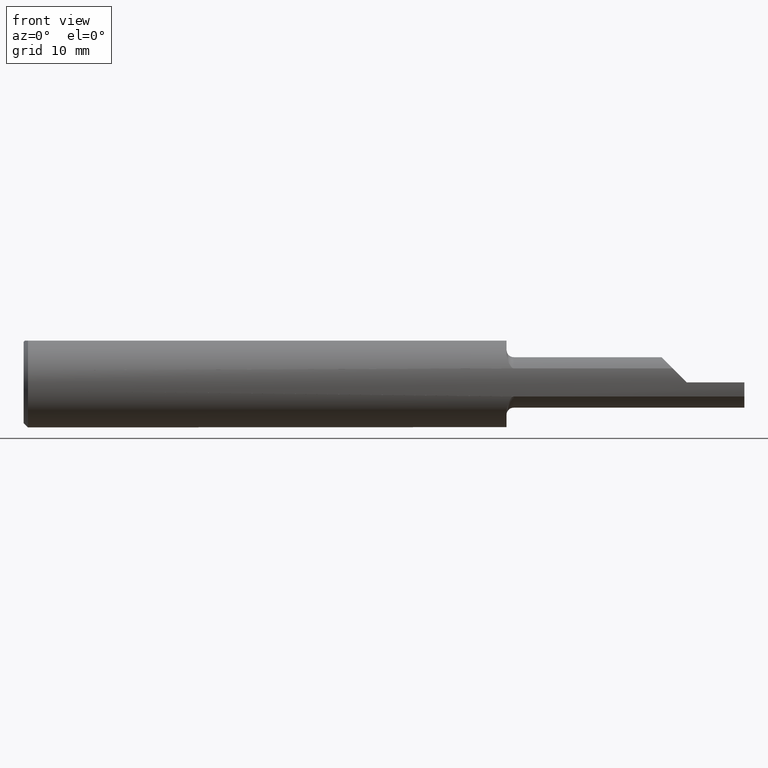
[diagram: clean part render]
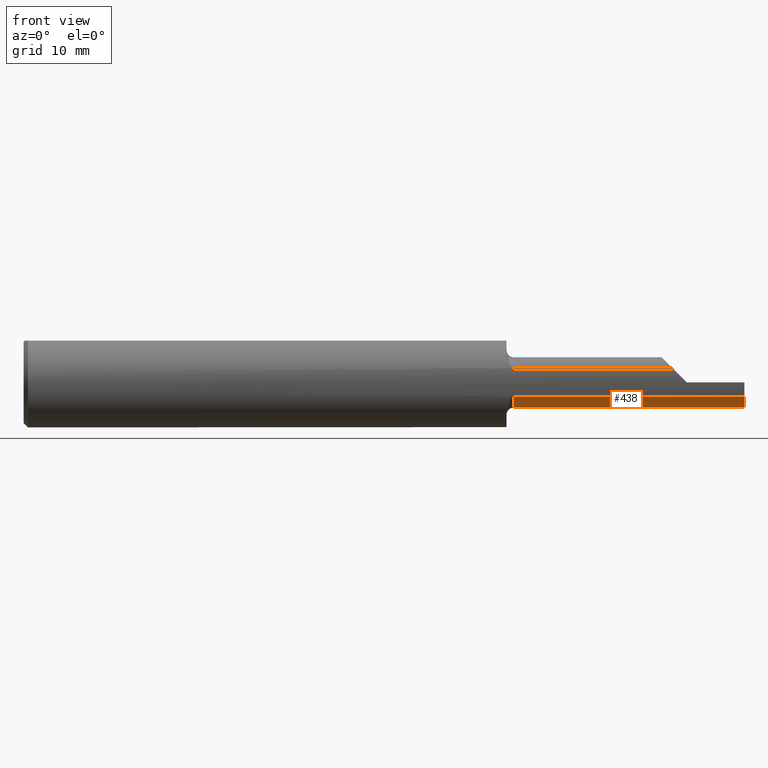
[diagram: same view with one face highlighted and labeled with its STEP entity id]
A machine part, front view. The second image highlights one B-rep face of the part: STEP entity #438.
In plain terms, the highlighted cylindrical surface (edge-blend (fillet) strip) has radius 2.2225 mm, axis along (-1, -0, -0).
Its self-contained STEP definition (entity closure, byte-faithful):
#12 = CARTESIAN_POINT ( 'NONE',  ( 2.499598828602855427, -0.07853027803292619846, -0.08746319671885703639 ) ) ;
#14 = CARTESIAN_POINT ( 'NONE',  ( 2.460971373209815294, -0.07560000000000001441, -0.08750000000000002220 ) ) ;
#24 = EDGE_LOOP ( 'NONE', ( #60, #932, #119, #146, #600, #750 ) ) ;
#41 = EDGE_CURVE ( 'NONE', #474, #329, #408, .T. ) ;
#60 = ORIENTED_EDGE ( 'NONE', *, *, #598, .F. ) ;
#69 =( BOUNDED_CURVE ( )  B_SPLINE_CURVE ( 3, ( #158, #87, #12, #306 ),
 .UNSPECIFIED., .F., .F. ) 
 B_SPLINE_CURVE_WITH_KNOTS ( ( 4, 4 ),
 ( 0.6981317007977303479, 0.7483676794121272291 ),
 .UNSPECIFIED. ) 
 CURVE ( )  GEOMETRIC_REPRESENTATION_ITEM ( )  RATIONAL_B_SPLINE_CURVE ( ( 1.000000000000000000, 0.9997897065944802986, 0.9997897065944802986, 1.000000000000000000 ) ) 
 REPRESENTATION_ITEM ( '' )  );
#74 = DIRECTION ( 'NONE',  ( -1.000000000000000000, -0.000000000000000000, -0.000000000000000000 ) ) ;
#87 = CARTESIAN_POINT ( 'NONE',  ( 2.499208634579223709, -0.07706537013472009034, -0.08750000000000002220 ) ) ;
#103 = DIRECTION ( 'NONE',  ( 1.000000000000000000, 0.000000000000000000, 0.000000000000000000 ) ) ;
#119 = ORIENTED_EDGE ( 'NONE', *, *, #683, .T. ) ;
#123 = CARTESIAN_POINT ( 'NONE',  ( 1.699999999999999956, -0.1483222222222221054, -0.04865930943880881349 ) ) ;
#133 = CARTESIAN_POINT ( 'NONE',  ( 2.500000000000000000, -0.07560000000000001441, 0.000000000000000000 ) ) ;
#139 = DIRECTION ( 'NONE',  ( 0.000000000000000000, 0.000000000000000000, 1.000000000000000000 ) ) ;
#146 = ORIENTED_EDGE ( 'NONE', *, *, #41, .F. ) ;
#147 = EDGE_CURVE ( 'NONE', #474, #829, #426, .T. ) ;
#158 = CARTESIAN_POINT ( 'NONE',  ( 2.498829664094795788, -0.07560000000000004217, -0.08750000000000006384 ) ) ;
#197 = VERTEX_POINT ( 'NONE', #14 ) ;
#205 = CARTESIAN_POINT ( 'NONE',  ( 1.675000000000000044, -0.07560000000000001441, 0.000000000000000000 ) ) ;
#267 = DIRECTION ( 'NONE',  ( 1.000000000000000000, -0.000000000000000000, -0.000000000000000000 ) ) ;
#273 = CYLINDRICAL_SURFACE ( 'NONE', #791, 0.08750000000000002220 ) ;
#302 = CIRCLE ( 'NONE', #822, 0.08750000000000002220 ) ;
#306 = CARTESIAN_POINT ( 'NONE',  ( 2.500000000000000000, -0.07999379951320635673, -0.08738961337503303728 ) ) ;
#329 = VERTEX_POINT ( 'NONE', #831 ) ;
#337 = DIRECTION ( 'NONE',  ( -1.000000000000000000, -0.000000000000000000, -0.000000000000000000 ) ) ;
#348 = EDGE_CURVE ( 'NONE', #378, #197, #667, .T. ) ;
#354 = EDGE_CURVE ( 'NONE', #829, #457, #302, .T. ) ;
#360 = DIRECTION ( 'NONE',  ( -1.000000000000000000, -0.000000000000000000, -0.000000000000000000 ) ) ;
#378 = VERTEX_POINT ( 'NONE', #902 ) ;
#390 = DIRECTION ( 'NONE',  ( 0.000000000000000000, 0.000000000000000000, -1.000000000000000000 ) ) ;
#408 = CIRCLE ( 'NONE', #678, 0.08750000000000003608 ) ;
#426 = LINE ( 'NONE', #714, #692 ) ;
#438 = ADVANCED_FACE ( 'NONE', ( #778 ), #273, .T. ) ;
#457 = VERTEX_POINT ( 'NONE', #838 ) ;
#474 = VERTEX_POINT ( 'NONE', #906 ) ;
#488 = DIRECTION ( 'NONE',  ( -1.000000000000000000, -0.000000000000000000, -0.000000000000000000 ) ) ;
#510 = CARTESIAN_POINT ( 'NONE',  ( 1.675000000000000044, -0.07560000000000000053, -0.08750000000000002220 ) ) ;
#579 = VECTOR ( 'NONE', #337, 39.37007874015748143 ) ;
#598 = EDGE_CURVE ( 'NONE', #197, #457, #659, .T. ) ;
#600 = ORIENTED_EDGE ( 'NONE', *, *, #147, .T. ) ;
#659 = LINE ( 'NONE', #510, #684 ) ;
#667 = LINE ( 'NONE', #897, #579 ) ;
#678 = AXIS2_PLACEMENT_3D ( 'NONE', #133, #267, #139 ) ;
#683 = EDGE_CURVE ( 'NONE', #378, #329, #69, .T. ) ;
#684 = VECTOR ( 'NONE', #360, 39.37007874015748143 ) ;
#692 = VECTOR ( 'NONE', #74, 39.37007874015748143 ) ;
#693 = DIRECTION ( 'NONE',  ( 0.000000000000000000, 0.000000000000000000, 1.000000000000000000 ) ) ;
#714 = CARTESIAN_POINT ( 'NONE',  ( 2.058749999999999858, -0.1483222222222221054, -0.04865930943880881349 ) ) ;
#750 = ORIENTED_EDGE ( 'NONE', *, *, #354, .T. ) ;
#778 = FACE_OUTER_BOUND ( 'NONE', #24, .T. ) ;
#791 = AXIS2_PLACEMENT_3D ( 'NONE', #205, #488, #693 ) ;
#822 = AXIS2_PLACEMENT_3D ( 'NONE', #893, #103, #390 ) ;
#829 = VERTEX_POINT ( 'NONE', #123 ) ;
#831 = CARTESIAN_POINT ( 'NONE',  ( 2.500000000000000000, -0.07999379951320635673, -0.08738961337503303728 ) ) ;
#838 = CARTESIAN_POINT ( 'NONE',  ( 1.699999999999999956, -0.07560000000000000053, -0.08750000000000002220 ) ) ;
#893 = CARTESIAN_POINT ( 'NONE',  ( 1.699999999999999956, -0.07560000000000001441, 0.000000000000000000 ) ) ;
#897 = CARTESIAN_POINT ( 'NONE',  ( 2.500000000000000000, -0.07560000000000001441, -0.08750000000000006384 ) ) ;
#902 = CARTESIAN_POINT ( 'NONE',  ( 2.498829664094795788, -0.07560000000000004217, -0.08750000000000006384 ) ) ;
#906 = CARTESIAN_POINT ( 'NONE',  ( 2.500000000000000000, -0.1483222222222221054, -0.04865930943880888288 ) ) ;
#932 = ORIENTED_EDGE ( 'NONE', *, *, #348, .F. ) ;